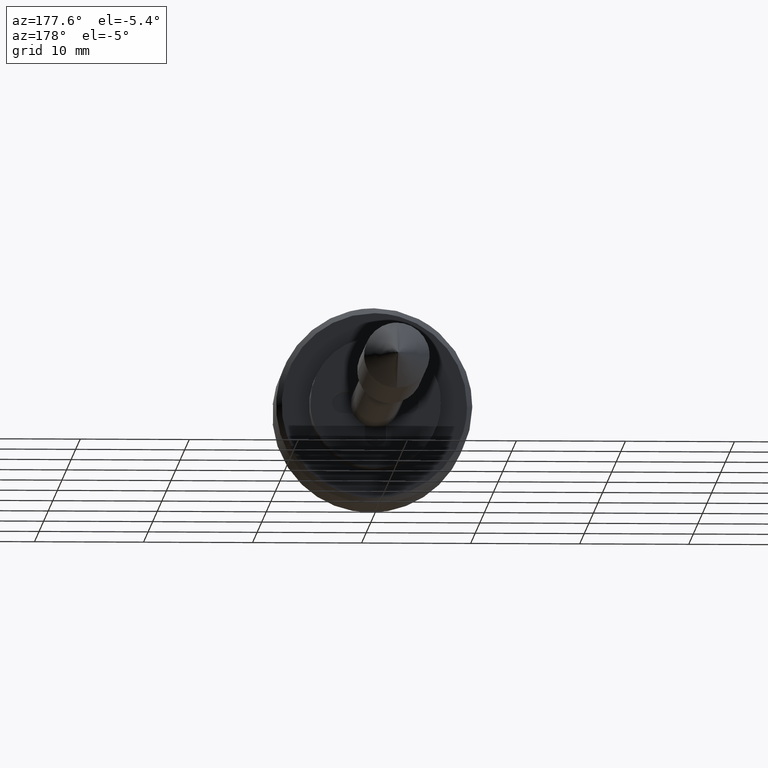
[diagram: clean part render]
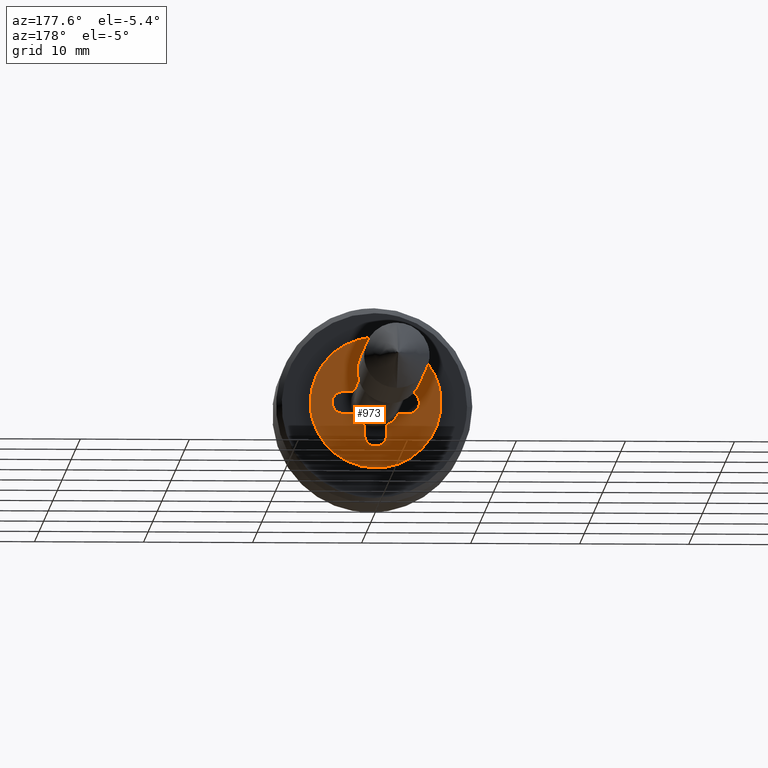
[diagram: same view with one face highlighted and labeled with its STEP entity id]
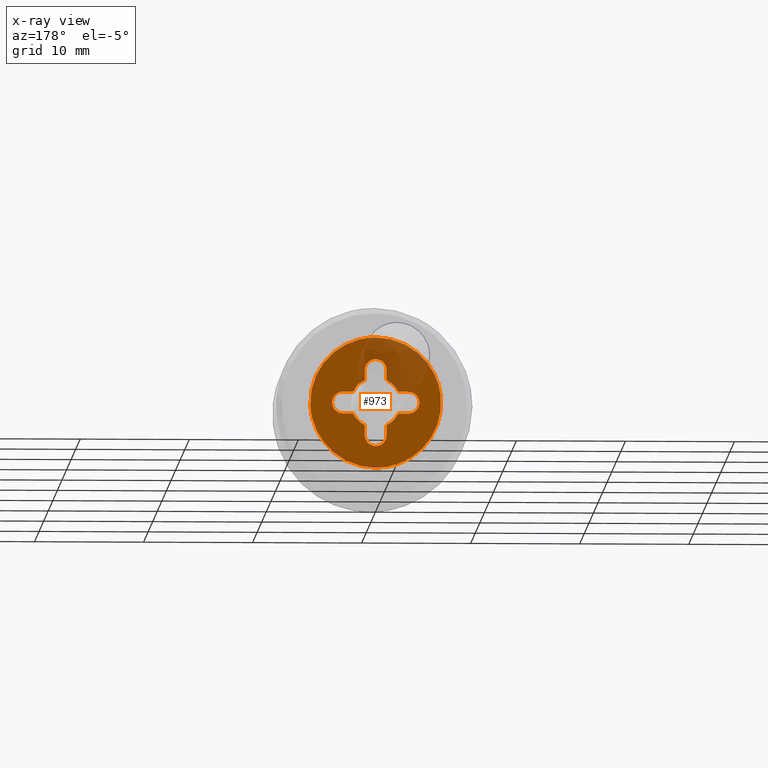
[diagram: x-ray of the same camera — body ghosted, the highlighted face saturated]
A machine part, auxiliary view. The second image highlights one B-rep face of the part: STEP entity #973.
The next image is the same camera in x-ray: the body ghosted, the highlighted face saturated — about 23% of this face is hidden behind the body in this view.
In plain terms, the highlighted face is a freeform B-spline surface patch.
Its self-contained STEP definition (entity closure, byte-faithful):
#85=CARTESIAN_POINT('',(-5.958057158176406,0.800000000000023,0.708205407987604));
#86=VERTEX_POINT('',#85);
#92=CARTESIAN_POINT('',(0.0,0.800000000000023,-6.0));
#93=VERTEX_POINT('',#92);
#94=CARTESIAN_POINT('',(-5.958057158176406,0.800000000000023,0.708205407987604));
#95=CARTESIAN_POINT('',(-6.0,0.800000000000023,0.355344717959012));
#96=CARTESIAN_POINT('',(-6.0,0.800000000000023,0.0));
#97=CARTESIAN_POINT('',(-6.0,0.800000000000023,-6.0));
#98=CARTESIAN_POINT('',(0.0,0.800000000000023,-6.0));
#106=(BOUNDED_CURVE()B_SPLINE_CURVE(2,(#94,#95,#96,#97,#98),.UNSPECIFIED.,.F.,.U.)B_SPLINE_CURVE_WITH_KNOTS((3,2,3),(0.229562473512975,0.250000000000000,0.500000000000000),.UNSPECIFIED.)CURVE()GEOMETRIC_REPRESENTATION_ITEM()RATIONAL_B_SPLINE_CURVE((0.956026754182654,0.976055948330520,1.0,0.707106781186548,1.0))REPRESENTATION_ITEM(''));
#107=EDGE_CURVE('',#86,#93,#106,.T.);
#109=CARTESIAN_POINT('',(5.988808790527463,0.800000000000023,-0.366291237270274));
#110=VERTEX_POINT('',#109);
#111=CARTESIAN_POINT('',(0.0,0.800000000000023,-6.0));
#112=CARTESIAN_POINT('',(5.644236401318718,0.800000000000023,-6.000000000000002));
#113=CARTESIAN_POINT('',(5.988808790527463,0.800000000000023,-0.366291237270274));
#121=(BOUNDED_CURVE()B_SPLINE_CURVE(2,(#111,#112,#113),.UNSPECIFIED.,.F.,.U.)B_SPLINE_CURVE_WITH_KNOTS((3,3),(0.500000000000000,0.739332962238445),.UNSPECIFIED.)CURVE()GEOMETRIC_REPRESENTATION_ITEM()RATIONAL_B_SPLINE_CURVE((1.0,0.719603993287293,0.976072041665652))REPRESENTATION_ITEM(''));
#122=EDGE_CURVE('',#93,#110,#121,.T.);
#196=CARTESIAN_POINT('',(0.0,0.800000000000023,6.0));
#197=VERTEX_POINT('',#196);
#198=CARTESIAN_POINT('',(5.988808790527463,0.800000000000023,-0.366291237270273));
#199=CARTESIAN_POINT('',(6.0,0.800000000000023,-0.183316579852837));
#200=CARTESIAN_POINT('',(6.0,0.800000000000023,0.0));
#201=CARTESIAN_POINT('',(6.0,0.800000000000023,6.0));
#202=CARTESIAN_POINT('',(0.0,0.800000000000023,6.0));
#210=(BOUNDED_CURVE()B_SPLINE_CURVE(2,(#198,#199,#200,#201,#202),.UNSPECIFIED.,.F.,.U.)B_SPLINE_CURVE_WITH_KNOTS((3,2,3),(0.739332962238446,0.750000000000000,1.0),.UNSPECIFIED.)CURVE()GEOMETRIC_REPRESENTATION_ITEM()RATIONAL_B_SPLINE_CURVE((0.976072041665652,0.987502787899255,1.0,0.707106781186548,1.0))REPRESENTATION_ITEM(''));
#211=EDGE_CURVE('',#110,#197,#210,.T.);
#213=CARTESIAN_POINT('',(0.0,0.800000000000023,6.0));
#214=CARTESIAN_POINT('',(-5.329047155623440,0.800000000000023,6.0));
#215=CARTESIAN_POINT('',(-5.958057158176406,0.800000000000023,0.708205407987604));
#223=(BOUNDED_CURVE()B_SPLINE_CURVE(2,(#213,#214,#215),.UNSPECIFIED.,.F.,.U.)B_SPLINE_CURVE_WITH_KNOTS((3,3),(0.0,0.229562473512975),.UNSPECIFIED.)CURVE()GEOMETRIC_REPRESENTATION_ITEM()RATIONAL_B_SPLINE_CURVE((1.0,0.731050832856028,0.956026754182654))REPRESENTATION_ITEM(''));
#224=EDGE_CURVE('',#197,#86,#223,.T.);
#267=CARTESIAN_POINT('',(3.0,0.800000000000023,1.0));
#268=VERTEX_POINT('',#267);
#274=CARTESIAN_POINT('',(3.0,0.800000000000023,-1.0));
#275=VERTEX_POINT('',#274);
#276=CARTESIAN_POINT('',(3.0,0.800000000000023,-1.0));
#277=CARTESIAN_POINT('',(4.000000000000000,0.800000000000023,-1.0));
#278=CARTESIAN_POINT('',(4.0,0.800000000000023,0.0));
#279=CARTESIAN_POINT('',(4.000000000000000,0.800000000000023,1.0));
#280=CARTESIAN_POINT('',(3.0,0.800000000000023,1.0));
#288=(BOUNDED_CURVE()B_SPLINE_CURVE(2,(#276,#277,#278,#279,#280),.UNSPECIFIED.,.F.,.U.)B_SPLINE_CURVE_WITH_KNOTS((3,2,3),(0.0,0.500000000000000,1.0),.UNSPECIFIED.)CURVE()GEOMETRIC_REPRESENTATION_ITEM()RATIONAL_B_SPLINE_CURVE((1.0,0.707106781186548,1.0,0.707106781186548,1.0))REPRESENTATION_ITEM(''));
#289=EDGE_CURVE('',#275,#268,#288,.T.);
#312=CARTESIAN_POINT('',(2.071231517720795,0.800000000000023,-1.0));
#313=VERTEX_POINT('',#312);
#314=CARTESIAN_POINT('',(2.071231517720795,0.800000000000023,-1.0));
#315=CARTESIAN_POINT('',(3.0,0.800000000000023,-1.0));
#316=QUASI_UNIFORM_CURVE('',1,(#314,#315),.UNSPECIFIED.,.F.,.U.);
#317=EDGE_CURVE('',#313,#275,#316,.T.);
#357=CARTESIAN_POINT('',(1.0,0.800000000000023,-2.071231517720800));
#358=VERTEX_POINT('',#357);
#359=CARTESIAN_POINT('',(0.999999999999999,0.800000000000023,-2.071231517720799));
#360=CARTESIAN_POINT('',(1.722436087763835,0.800000000000023,-1.722436087763838));
#361=CARTESIAN_POINT('',(2.071231517720797,0.800000000000023,-1.000000000000002));
#369=(BOUNDED_CURVE()B_SPLINE_CURVE(2,(#359,#360,#361),.UNSPECIFIED.,.F.,.U.)CURVE()GEOMETRIC_REPRESENTATION_ITEM()QUASI_UNIFORM_CURVE()RATIONAL_B_SPLINE_CURVE((1.0,0.944212449032273,1.0))REPRESENTATION_ITEM(''));
#370=EDGE_CURVE('',#358,#313,#369,.T.);
#393=CARTESIAN_POINT('',(0.999999999999985,0.800000000000023,-2.999999825467075));
#394=VERTEX_POINT('',#393);
#395=CARTESIAN_POINT('',(0.999999999999985,0.800000000000023,-2.999999825467075));
#396=CARTESIAN_POINT('',(1.0,0.800000000000023,-2.071231517720800));
#397=QUASI_UNIFORM_CURVE('',1,(#395,#396),.UNSPECIFIED.,.F.,.U.);
#398=EDGE_CURVE('',#394,#358,#397,.T.);
#446=CARTESIAN_POINT('',(-0.999999999999989,0.800000000000023,-3.0));
#447=VERTEX_POINT('',#446);
#448=CARTESIAN_POINT('',(-1.0,0.800000000000023,-3.0));
#449=CARTESIAN_POINT('',(-1.0,0.800000000000023,-3.577350307974721));
#450=CARTESIAN_POINT('',(-0.499999949616683,0.800000000000023,-3.866025432873258));
#451=CARTESIAN_POINT('',(0.000000100766633,0.800000000000023,-4.154700557771795));
#452=CARTESIAN_POINT('',(0.500000100766628,0.800000000000023,-3.866025345606791));
#453=CARTESIAN_POINT('',(1.000000100766623,0.800000000000023,-3.577350133441787));
#454=CARTESIAN_POINT('',(0.999999999999985,0.800000000000023,-2.999999825467075));
#462=(BOUNDED_CURVE()B_SPLINE_CURVE(2,(#448,#449,#450,#451,#452,#453,#454),.UNSPECIFIED.,.F.,.U.)B_SPLINE_CURVE_WITH_KNOTS((3,2,2,3),(0.0,0.333333333333333,0.666666666666667,1.0),.UNSPECIFIED.)CURVE()GEOMETRIC_REPRESENTATION_ITEM()RATIONAL_B_SPLINE_CURVE((1.0,0.866025389240028,1.0,0.866025389240028,1.0,0.866025389240028,1.0))REPRESENTATION_ITEM(''));
#463=EDGE_CURVE('',#447,#394,#462,.T.);
#486=CARTESIAN_POINT('',(-1.0,0.800000000000023,-2.071231517720800));
#487=VERTEX_POINT('',#486);
#488=CARTESIAN_POINT('',(-1.0,0.800000000000023,-2.071231517720800));
#489=CARTESIAN_POINT('',(-0.999999999999989,0.800000000000023,-3.0));
#490=QUASI_UNIFORM_CURVE('',1,(#488,#489),.UNSPECIFIED.,.F.,.U.);
#491=EDGE_CURVE('',#487,#447,#490,.T.);
#531=CARTESIAN_POINT('',(-2.071231517720795,0.800000000000023,-1.0));
#532=VERTEX_POINT('',#531);
#533=CARTESIAN_POINT('',(-2.071231517720797,0.800000000000023,-1.000000000000002));
#534=CARTESIAN_POINT('',(-1.722436087763835,0.800000000000023,-1.722436087763838));
#535=CARTESIAN_POINT('',(-0.999999999999999,0.800000000000023,-2.071231517720798));
#543=(BOUNDED_CURVE()B_SPLINE_CURVE(2,(#533,#534,#535),.UNSPECIFIED.,.F.,.U.)CURVE()GEOMETRIC_REPRESENTATION_ITEM()QUASI_UNIFORM_CURVE()RATIONAL_B_SPLINE_CURVE((1.0,0.944212449032273,1.0))REPRESENTATION_ITEM(''));
#544=EDGE_CURVE('',#532,#487,#543,.T.);
#567=CARTESIAN_POINT('',(-3.0,0.800000000000023,-1.0));
#568=VERTEX_POINT('',#567);
#569=CARTESIAN_POINT('',(-3.0,0.800000000000023,-1.0));
#570=CARTESIAN_POINT('',(-2.071231517720795,0.800000000000023,-1.0));
#571=QUASI_UNIFORM_CURVE('',1,(#569,#570),.UNSPECIFIED.,.F.,.U.);
#572=EDGE_CURVE('',#568,#532,#571,.T.);
#618=CARTESIAN_POINT('',(-3.0,0.800000000000023,1.0));
#619=VERTEX_POINT('',#618);
#620=CARTESIAN_POINT('',(-3.0,0.800000000000023,1.0));
#621=CARTESIAN_POINT('',(-4.000000000000000,0.800000000000023,1.0));
#622=CARTESIAN_POINT('',(-4.0,0.800000000000023,0.0));
#623=CARTESIAN_POINT('',(-4.000000000000000,0.800000000000023,-1.0));
#624=CARTESIAN_POINT('',(-3.0,0.800000000000023,-1.0));
#632=(BOUNDED_CURVE()B_SPLINE_CURVE(2,(#620,#621,#622,#623,#624),.UNSPECIFIED.,.F.,.U.)B_SPLINE_CURVE_WITH_KNOTS((3,2,3),(0.0,0.500000000000000,1.0),.UNSPECIFIED.)CURVE()GEOMETRIC_REPRESENTATION_ITEM()RATIONAL_B_SPLINE_CURVE((1.0,0.707106781186548,1.0,0.707106781186548,1.0))REPRESENTATION_ITEM(''));
#633=EDGE_CURVE('',#619,#568,#632,.T.);
#656=CARTESIAN_POINT('',(-2.071231517720800,0.800000000000023,1.0));
#657=VERTEX_POINT('',#656);
#658=CARTESIAN_POINT('',(-2.071231517720800,0.800000000000023,1.0));
#659=CARTESIAN_POINT('',(-3.0,0.800000000000023,1.0));
#660=QUASI_UNIFORM_CURVE('',1,(#658,#659),.UNSPECIFIED.,.F.,.U.);
#661=EDGE_CURVE('',#657,#619,#660,.T.);
#701=CARTESIAN_POINT('',(-0.999999999999989,0.800000000000023,2.071231517720800));
#702=VERTEX_POINT('',#701);
#703=CARTESIAN_POINT('',(-0.999999999999991,0.800000000000023,2.071231517720803));
#704=CARTESIAN_POINT('',(-1.722436087763835,0.800000000000023,1.722436087763841));
#705=CARTESIAN_POINT('',(-2.071231517720799,0.800000000000023,0.999999999999998));
#713=(BOUNDED_CURVE()B_SPLINE_CURVE(2,(#703,#704,#705),.UNSPECIFIED.,.F.,.U.)CURVE()GEOMETRIC_REPRESENTATION_ITEM()QUASI_UNIFORM_CURVE()RATIONAL_B_SPLINE_CURVE((1.0,0.944212449032272,1.0))REPRESENTATION_ITEM(''));
#714=EDGE_CURVE('',#702,#657,#713,.T.);
#737=CARTESIAN_POINT('',(-1.0,0.800000000000023,3.0));
#738=VERTEX_POINT('',#737);
#739=CARTESIAN_POINT('',(-1.0,0.800000000000023,3.0));
#740=CARTESIAN_POINT('',(-0.999999999999989,0.800000000000023,2.071231517720800));
#741=QUASI_UNIFORM_CURVE('',1,(#739,#740),.UNSPECIFIED.,.F.,.U.);
#742=EDGE_CURVE('',#738,#702,#741,.T.);
#788=CARTESIAN_POINT('',(1.0,0.800000000000023,3.0));
#789=VERTEX_POINT('',#788);
#790=CARTESIAN_POINT('',(1.0,0.800000000000023,3.0));
#791=CARTESIAN_POINT('',(1.0,0.800000000000023,4.000000000000000));
#792=CARTESIAN_POINT('',(0.0,0.800000000000023,4.0));
#793=CARTESIAN_POINT('',(-1.0,0.800000000000023,4.000000000000000));
#794=CARTESIAN_POINT('',(-1.0,0.800000000000023,3.0));
#802=(BOUNDED_CURVE()B_SPLINE_CURVE(2,(#790,#791,#792,#793,#794),.UNSPECIFIED.,.F.,.U.)B_SPLINE_CURVE_WITH_KNOTS((3,2,3),(0.0,0.500000000000000,1.0),.UNSPECIFIED.)CURVE()GEOMETRIC_REPRESENTATION_ITEM()RATIONAL_B_SPLINE_CURVE((1.0,0.707106781186548,1.0,0.707106781186548,1.0))REPRESENTATION_ITEM(''));
#803=EDGE_CURVE('',#789,#738,#802,.T.);
#826=CARTESIAN_POINT('',(1.0,0.800000000000023,2.071231517720800));
#827=VERTEX_POINT('',#826);
#828=CARTESIAN_POINT('',(1.0,0.800000000000023,2.071231517720800));
#829=CARTESIAN_POINT('',(1.0,0.800000000000023,3.0));
#830=QUASI_UNIFORM_CURVE('',1,(#828,#829),.UNSPECIFIED.,.F.,.U.);
#831=EDGE_CURVE('',#827,#789,#830,.T.);
#871=CARTESIAN_POINT('',(2.071231517720800,0.800000000000023,1.0));
#872=VERTEX_POINT('',#871);
#873=CARTESIAN_POINT('',(2.071231517720799,0.800000000000023,0.999999999999998));
#874=CARTESIAN_POINT('',(1.722436087763839,0.800000000000023,1.722436087763834));
#875=CARTESIAN_POINT('',(1.0,0.800000000000023,2.071231517720797));
#883=(BOUNDED_CURVE()B_SPLINE_CURVE(2,(#873,#874,#875),.UNSPECIFIED.,.F.,.U.)CURVE()GEOMETRIC_REPRESENTATION_ITEM()QUASI_UNIFORM_CURVE()RATIONAL_B_SPLINE_CURVE((1.0,0.944212449032273,1.0))REPRESENTATION_ITEM(''));
#884=EDGE_CURVE('',#872,#827,#883,.T.);
#905=CARTESIAN_POINT('',(3.0,0.800000000000023,1.0));
#906=CARTESIAN_POINT('',(2.071231517720800,0.800000000000023,1.0));
#907=QUASI_UNIFORM_CURVE('',1,(#905,#906),.UNSPECIFIED.,.F.,.U.);
#908=EDGE_CURVE('',#268,#872,#907,.T.);
#944=CARTESIAN_POINT('',(-6.599291187213035,0.800000000000000,6.599399976741672));
#945=CARTESIAN_POINT('',(6.599253958151909,0.800000000000000,6.599399976741672));
#946=CARTESIAN_POINT('',(-6.599291187213035,0.800000000000000,-6.599400298606753));
#947=CARTESIAN_POINT('',(6.599253958151909,0.800000000000000,-6.599400298606753));
#948=B_SPLINE_SURFACE_WITH_KNOTS('',1,1,((#944,#946),(#945,#947)),.UNSPECIFIED.,.F.,.F.,.U.,(2,2),(2,2),(0.0,13.198545145364941),(0.0,13.198800275348431),.UNSPECIFIED.);
#949=ORIENTED_EDGE('',*,*,#211,.F.);
#950=ORIENTED_EDGE('',*,*,#122,.F.);
#951=ORIENTED_EDGE('',*,*,#107,.F.);
#952=ORIENTED_EDGE('',*,*,#224,.F.);
#953=EDGE_LOOP('',(#949,#950,#951,#952));
#954=FACE_OUTER_BOUND('',#953,.T.);
#955=ORIENTED_EDGE('',*,*,#289,.T.);
#956=ORIENTED_EDGE('',*,*,#908,.T.);
#957=ORIENTED_EDGE('',*,*,#884,.T.);
#958=ORIENTED_EDGE('',*,*,#831,.T.);
#959=ORIENTED_EDGE('',*,*,#803,.T.);
#960=ORIENTED_EDGE('',*,*,#742,.T.);
#961=ORIENTED_EDGE('',*,*,#714,.T.);
#962=ORIENTED_EDGE('',*,*,#661,.T.);
#963=ORIENTED_EDGE('',*,*,#633,.T.);
#964=ORIENTED_EDGE('',*,*,#572,.T.);
#965=ORIENTED_EDGE('',*,*,#544,.T.);
#966=ORIENTED_EDGE('',*,*,#491,.T.);
#967=ORIENTED_EDGE('',*,*,#463,.T.);
#968=ORIENTED_EDGE('',*,*,#398,.T.);
#969=ORIENTED_EDGE('',*,*,#370,.T.);
#970=ORIENTED_EDGE('',*,*,#317,.T.);
#971=EDGE_LOOP('',(#955,#956,#957,#958,#959,#960,#961,#962,#963,#964,#965,#966,#967,#968,#969,#970));
#972=FACE_BOUND('',#971,.T.);
#973=ADVANCED_FACE('',(#954,#972),#948,.T.);